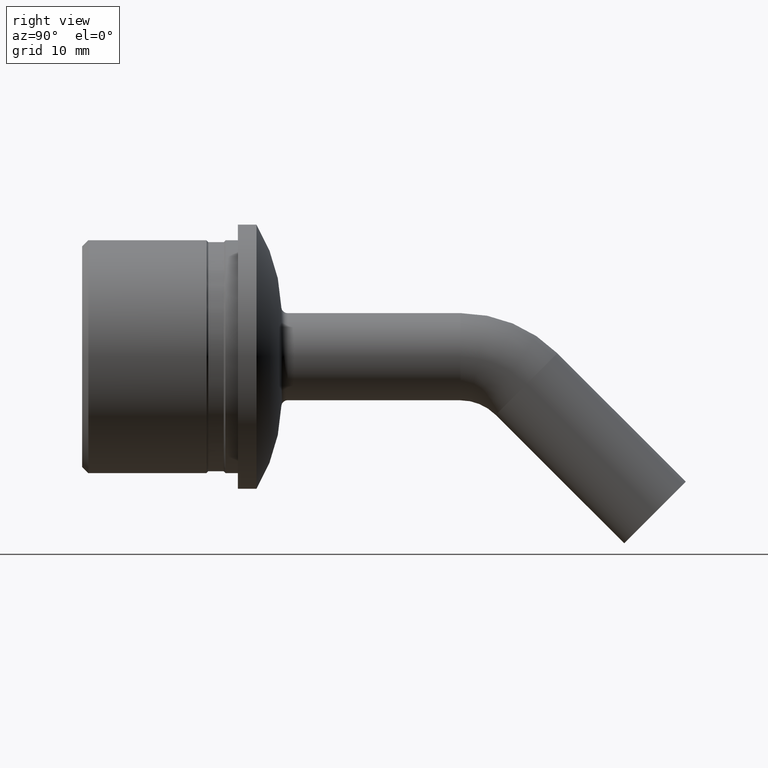
[diagram: clean part render]
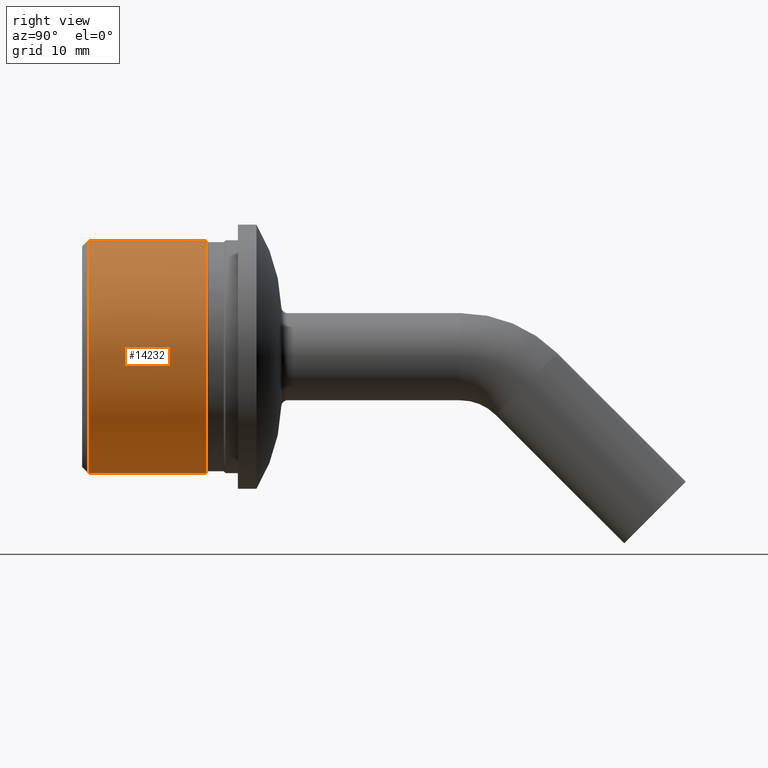
[diagram: same view with one face highlighted and labeled with its STEP entity id]
A machine part, right view. The second image highlights one B-rep face of the part: STEP entity #14232.
In plain terms, the highlighted cylindrical surface (partial cylindrical patch) has radius 18.7 mm, axis along (-0, 1, 0).
Its self-contained STEP definition (entity closure, byte-faithful):
#217 = AXIS2_PLACEMENT_3D ( 'NONE', #9220, #1983, #8054 ) ;
#594 = CARTESIAN_POINT ( 'NONE',  ( 2.290089514405550505E-15, -11.99999999999999289, -18.70000000000000284 ) ) ;
#944 = ORIENTED_EDGE ( 'NONE', *, *, #1172, .F. ) ;
#972 = DIRECTION ( 'NONE',  ( -0.000000000000000000, 1.000000000000000000, -5.248486282060084733E-17 ) ) ;
#1172 = EDGE_CURVE ( 'NONE', #2908, #8577, #10141, .T. ) ;
#1205 = DIRECTION ( 'NONE',  ( 0.000000000000000000, 0.000000000000000000, 1.000000000000000000 ) ) ;
#1261 = VECTOR ( 'NONE', #14743, 1000.000000000000000 ) ;
#1464 = ORIENTED_EDGE ( 'NONE', *, *, #9486, .T. ) ;
#1534 = CARTESIAN_POINT ( 'NONE',  ( 2.290089514405550505E-15, -30.99999999999997868, -18.70000000000000639 ) ) ;
#1983 = DIRECTION ( 'NONE',  ( 0.000000000000000000, 1.000000000000000000, 1.224646799147351235E-16 ) ) ;
#2738 = CARTESIAN_POINT ( 'NONE',  ( 0.000000000000000000, -11.99999999999998934, 18.70000000000000284 ) ) ;
#2811 = LINE ( 'NONE', #9206, #6433 ) ;
#2908 = VERTEX_POINT ( 'NONE', #2738 ) ;
#3132 = VERTEX_POINT ( 'NONE', #5111 ) ;
#4989 = EDGE_CURVE ( 'NONE', #5234, #8577, #2811, .T. ) ;
#5111 = CARTESIAN_POINT ( 'NONE',  ( 0.000000000000000000, -30.99999999999998579, 18.69999999999999218 ) ) ;
#5234 = VERTEX_POINT ( 'NONE', #1534 ) ;
#5574 = DIRECTION ( 'NONE',  ( -0.000000000000000000, 1.000000000000000000, 1.224646799147353207E-16 ) ) ;
#6286 = CARTESIAN_POINT ( 'NONE',  ( 0.000000000000000000, -32.00000000000000000, 18.69999999999999574 ) ) ;
#6414 = ORIENTED_EDGE ( 'NONE', *, *, #7365, .F. ) ;
#6433 = VECTOR ( 'NONE', #5574, 1000.000000000000000 ) ;
#6538 = CIRCLE ( 'NONE', #217, 18.69999999999999929 ) ;
#7365 = EDGE_CURVE ( 'NONE', #3132, #2908, #11180, .T. ) ;
#7832 = CYLINDRICAL_SURFACE ( 'NONE', #15140, 18.69999999999999929 ) ;
#8030 = EDGE_LOOP ( 'NONE', ( #1464, #8969, #944, #6414 ) ) ;
#8054 = DIRECTION ( 'NONE',  ( 0.000000000000000000, 1.855319225643643971E-16, -1.000000000000000000 ) ) ;
#8577 = VERTEX_POINT ( 'NONE', #594 ) ;
#8969 = ORIENTED_EDGE ( 'NONE', *, *, #4989, .T. ) ;
#9206 = CARTESIAN_POINT ( 'NONE',  ( 2.290089514405550505E-15, -32.00000000000000000, -18.70000000000000284 ) ) ;
#9220 = CARTESIAN_POINT ( 'NONE',  ( 0.000000000000000000, -30.99999999999998224, -3.796405077356793537E-15 ) ) ;
#9486 = EDGE_CURVE ( 'NONE', #3132, #5234, #6538, .T. ) ;
#10141 = CIRCLE ( 'NONE', #15471, 18.70000000000000284 ) ;
#11180 = LINE ( 'NONE', #6286, #1261 ) ;
#12028 = DIRECTION ( 'NONE',  ( 0.000000000000000000, 9.276596128218218622E-17, 1.000000000000000000 ) ) ;
#12319 = DIRECTION ( 'NONE',  ( -0.000000000000000000, 1.000000000000000000, 1.224646799147353207E-16 ) ) ;
#13479 = CARTESIAN_POINT ( 'NONE',  ( 0.000000000000000000, -32.00000000000000000, -3.918869757271531052E-15 ) ) ;
#14232 = ADVANCED_FACE ( 'NONE', ( #15090 ), #7832, .T. ) ;
#14451 = CARTESIAN_POINT ( 'NONE',  ( 0.000000000000000000, -11.99999999999999112, 6.298183538472096996E-16 ) ) ;
#14743 = DIRECTION ( 'NONE',  ( -0.000000000000000000, 1.000000000000000000, 1.224646799147353207E-16 ) ) ;
#15090 = FACE_OUTER_BOUND ( 'NONE', #8030, .T. ) ;
#15140 = AXIS2_PLACEMENT_3D ( 'NONE', #13479, #12319, #1205 ) ;
#15471 = AXIS2_PLACEMENT_3D ( 'NONE', #14451, #972, #12028 ) ;